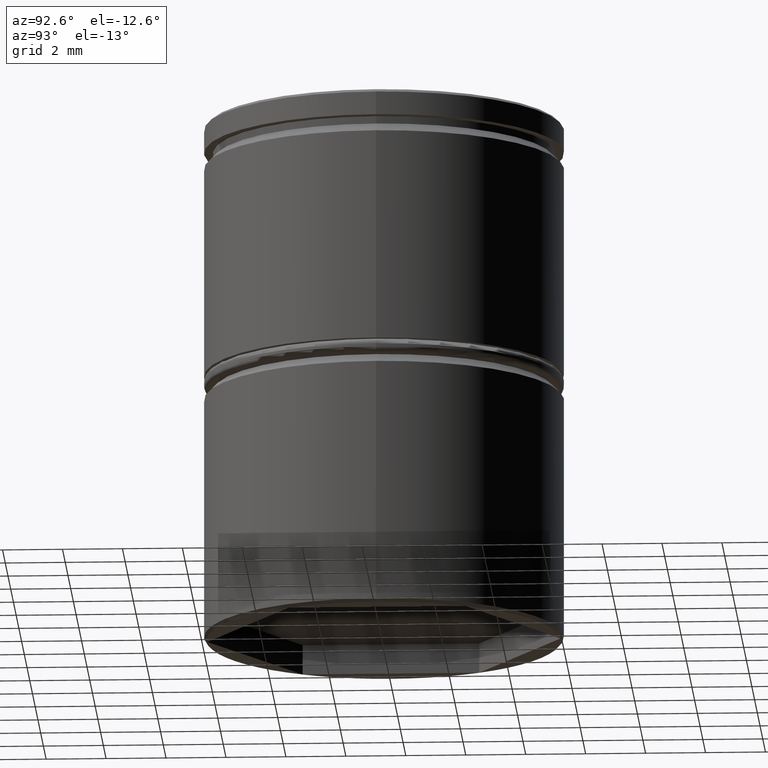
[diagram: clean part render]
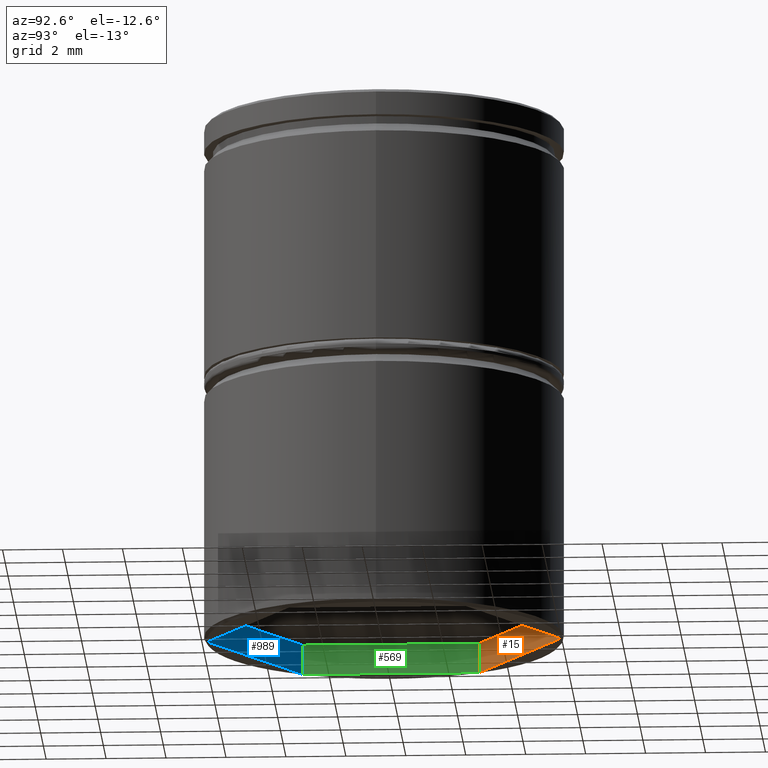
[diagram: same view with three faces highlighted in distinct colors, each labeled with its STEP entity id]
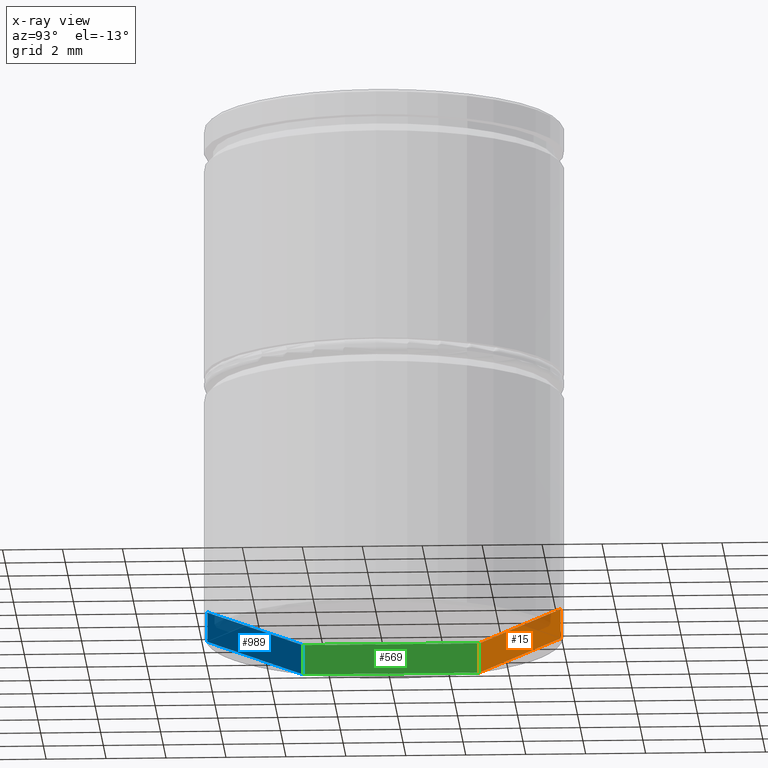
[diagram: x-ray of the same camera — body ghosted, the three highlighted faces saturated]
A machine part, auxiliary view with three faces highlighted in distinct colors.
The next image is the same camera in x-ray (body ghosted, the three faces saturated) — at least one of them is partly hidden behind the body in this view.
Their STEP definitions:

[orange] entity #15 — the highlighted planar face has unit normal (-0.5, 0.866, 0).
#15 = ADVANCED_FACE ( 'NONE', ( #112 ), #996, .F. ) ;
#20 = DIRECTION ( 'NONE',  ( -0.000000000000000000, -0.000000000000000000, -1.000000000000000000 ) ) ;
#25 = CARTESIAN_POINT ( 'NONE',  ( -5.100000000000000533, 2.944486372867091806, -16.50000000000000000 ) ) ;
#84 = CARTESIAN_POINT ( 'NONE',  ( -5.100000000000000533, 2.944486372867091806, -17.50000000000000000 ) ) ;
#91 = AXIS2_PLACEMENT_3D ( 'NONE', #755, #599, #988 ) ;
#112 = FACE_OUTER_BOUND ( 'NONE', #592, .T. ) ;
#137 = CARTESIAN_POINT ( 'NONE',  ( -5.100000000000000533, 2.944486372867091806, -16.50000000000000000 ) ) ;
#168 = ORIENTED_EDGE ( 'NONE', *, *, #905, .F. ) ;
#204 = VERTEX_POINT ( 'NONE', #494 ) ;
#296 = VECTOR ( 'NONE', #20, 1000.000000000000000 ) ;
#324 = DIRECTION ( 'NONE',  ( 0.8660254037844389297, 0.4999999999999995559, 0.000000000000000000 ) ) ;
#333 = CARTESIAN_POINT ( 'NONE',  ( 0.000000000000000000, 5.888972745734180059, -16.50000000000000000 ) ) ;
#364 = CARTESIAN_POINT ( 'NONE',  ( 0.000000000000000000, 5.888972745734180059, -16.50000000000000000 ) ) ;
#433 = VERTEX_POINT ( 'NONE', #505 ) ;
#486 = LINE ( 'NONE', #84, #661 ) ;
#494 = CARTESIAN_POINT ( 'NONE',  ( 0.000000000000000000, 5.888972745734180059, -17.50000000000000000 ) ) ;
#505 = CARTESIAN_POINT ( 'NONE',  ( -5.100000000000000533, 2.944486372867091806, -17.50000000000000000 ) ) ;
#521 = ORIENTED_EDGE ( 'NONE', *, *, #663, .T. ) ;
#551 = LINE ( 'NONE', #1024, #627 ) ;
#592 = EDGE_LOOP ( 'NONE', ( #521, #168, #833, #710 ) ) ;
#597 = LINE ( 'NONE', #364, #820 ) ;
#599 = DIRECTION ( 'NONE',  ( -0.4999999999999995004, 0.8660254037844389297, 0.000000000000000000 ) ) ;
#606 = EDGE_CURVE ( 'NONE', #985, #721, #551, .T. ) ;
#627 = VECTOR ( 'NONE', #946, 1000.000000000000114 ) ;
#661 = VECTOR ( 'NONE', #324, 1000.000000000000114 ) ;
#663 = EDGE_CURVE ( 'NONE', #433, #204, #486, .T. ) ;
#710 = ORIENTED_EDGE ( 'NONE', *, *, #778, .T. ) ;
#721 = VERTEX_POINT ( 'NONE', #333 ) ;
#734 = LINE ( 'NONE', #25, #296 ) ;
#755 = CARTESIAN_POINT ( 'NONE',  ( -5.100000000000000533, 2.944486372867091806, -16.50000000000000000 ) ) ;
#778 = EDGE_CURVE ( 'NONE', #985, #433, #734, .T. ) ;
#820 = VECTOR ( 'NONE', #911, 1000.000000000000000 ) ;
#833 = ORIENTED_EDGE ( 'NONE', *, *, #606, .F. ) ;
#905 = EDGE_CURVE ( 'NONE', #721, #204, #597, .T. ) ;
#911 = DIRECTION ( 'NONE',  ( -0.000000000000000000, -0.000000000000000000, -1.000000000000000000 ) ) ;
#946 = DIRECTION ( 'NONE',  ( 0.8660254037844389297, 0.4999999999999995559, 0.000000000000000000 ) ) ;
#985 = VERTEX_POINT ( 'NONE', #137 ) ;
#988 = DIRECTION ( 'NONE',  ( -0.8660254037844389297, -0.4999999999999995004, 0.000000000000000000 ) ) ;
#996 = PLANE ( 'NONE',  #91 ) ;
#1024 = CARTESIAN_POINT ( 'NONE',  ( -5.100000000000000533, 2.944486372867091806, -16.50000000000000000 ) ) ;

[blue] entity #989 — the highlighted planar face has unit normal (-0.5, -0.866, 0).
#56 = LINE ( 'NONE', #304, #874 ) ;
#63 = CARTESIAN_POINT ( 'NONE',  ( -5.100000000000000533, -2.944486372867089585, -17.50000000000000000 ) ) ;
#118 = LINE ( 'NONE', #435, #840 ) ;
#144 = ORIENTED_EDGE ( 'NONE', *, *, #952, .F. ) ;
#293 = ORIENTED_EDGE ( 'NONE', *, *, #372, .T. ) ;
#304 = CARTESIAN_POINT ( 'NONE',  ( -8.646952822150503169E-16, -5.888972745734181835, -17.50000000000000000 ) ) ;
#355 = ORIENTED_EDGE ( 'NONE', *, *, #639, .T. ) ;
#372 = EDGE_CURVE ( 'NONE', #637, #452, #736, .T. ) ;
#375 = VECTOR ( 'NONE', #768, 1000.000000000000000 ) ;
#435 = CARTESIAN_POINT ( 'NONE',  ( -8.646952822150503169E-16, -5.888972745734181835, -16.50000000000000000 ) ) ;
#452 = VERTEX_POINT ( 'NONE', #900 ) ;
#453 = LINE ( 'NONE', #1016, #375 ) ;
#458 = CARTESIAN_POINT ( 'NONE',  ( -8.646952822150503169E-16, -5.888972745734181835, -16.50000000000000000 ) ) ;
#525 = VERTEX_POINT ( 'NONE', #702 ) ;
#530 = VERTEX_POINT ( 'NONE', #63 ) ;
#539 = PLANE ( 'NONE',  #972 ) ;
#584 = VECTOR ( 'NONE', #882, 1000.000000000000000 ) ;
#637 = VERTEX_POINT ( 'NONE', #771 ) ;
#639 = EDGE_CURVE ( 'NONE', #452, #530, #56, .T. ) ;
#644 = EDGE_LOOP ( 'NONE', ( #355, #690, #144, #293 ) ) ;
#690 = ORIENTED_EDGE ( 'NONE', *, *, #1028, .F. ) ;
#691 = DIRECTION ( 'NONE',  ( -0.5000000000000003331, -0.8660254037844385966, 0.000000000000000000 ) ) ;
#699 = FACE_OUTER_BOUND ( 'NONE', #644, .T. ) ;
#702 = CARTESIAN_POINT ( 'NONE',  ( -5.100000000000000533, -2.944486372867089585, -16.50000000000000000 ) ) ;
#736 = LINE ( 'NONE', #962, #584 ) ;
#754 = DIRECTION ( 'NONE',  ( -0.8660254037844384856, 0.5000000000000002220, 0.000000000000000000 ) ) ;
#768 = DIRECTION ( 'NONE',  ( -0.000000000000000000, -0.000000000000000000, -1.000000000000000000 ) ) ;
#771 = CARTESIAN_POINT ( 'NONE',  ( -8.646952822150503169E-16, -5.888972745734181835, -16.50000000000000000 ) ) ;
#840 = VECTOR ( 'NONE', #754, 1000.000000000000114 ) ;
#848 = DIRECTION ( 'NONE',  ( 0.8660254037844384856, -0.5000000000000002220, 0.000000000000000000 ) ) ;
#874 = VECTOR ( 'NONE', #1013, 1000.000000000000114 ) ;
#882 = DIRECTION ( 'NONE',  ( -0.000000000000000000, -0.000000000000000000, -1.000000000000000000 ) ) ;
#900 = CARTESIAN_POINT ( 'NONE',  ( -8.646952822150503169E-16, -5.888972745734181835, -17.50000000000000000 ) ) ;
#952 = EDGE_CURVE ( 'NONE', #637, #525, #118, .T. ) ;
#962 = CARTESIAN_POINT ( 'NONE',  ( -8.646952822150503169E-16, -5.888972745734181835, -16.50000000000000000 ) ) ;
#972 = AXIS2_PLACEMENT_3D ( 'NONE', #458, #691, #848 ) ;
#989 = ADVANCED_FACE ( 'NONE', ( #699 ), #539, .F. ) ;
#1013 = DIRECTION ( 'NONE',  ( -0.8660254037844384856, 0.5000000000000002220, 0.000000000000000000 ) ) ;
#1016 = CARTESIAN_POINT ( 'NONE',  ( -5.100000000000000533, -2.944486372867089585, -16.50000000000000000 ) ) ;
#1028 = EDGE_CURVE ( 'NONE', #525, #530, #453, .T. ) ;

[green] entity #569 — the highlighted planar face has unit normal (-1, 0, 0).
#20 = DIRECTION ( 'NONE',  ( -0.000000000000000000, -0.000000000000000000, -1.000000000000000000 ) ) ;
#23 = ORIENTED_EDGE ( 'NONE', *, *, #778, .F. ) ;
#25 = CARTESIAN_POINT ( 'NONE',  ( -5.100000000000000533, 2.944486372867091806, -16.50000000000000000 ) ) ;
#63 = CARTESIAN_POINT ( 'NONE',  ( -5.100000000000000533, -2.944486372867089585, -17.50000000000000000 ) ) ;
#65 = CARTESIAN_POINT ( 'NONE',  ( -5.100000000000000533, -2.944486372867089585, -16.50000000000000000 ) ) ;
#110 = DIRECTION ( 'NONE',  ( 0.000000000000000000, 1.000000000000000000, 0.000000000000000000 ) ) ;
#137 = CARTESIAN_POINT ( 'NONE',  ( -5.100000000000000533, 2.944486372867091806, -16.50000000000000000 ) ) ;
#138 = DIRECTION ( 'NONE',  ( 0.000000000000000000, 0.000000000000000000, 1.000000000000000000 ) ) ;
#163 = AXIS2_PLACEMENT_3D ( 'NONE', #65, #392, #138 ) ;
#172 = LINE ( 'NONE', #800, #477 ) ;
#245 = EDGE_LOOP ( 'NONE', ( #358, #23, #556, #462 ) ) ;
#292 = CARTESIAN_POINT ( 'NONE',  ( -5.100000000000000533, -2.944486372867089585, -17.50000000000000000 ) ) ;
#296 = VECTOR ( 'NONE', #20, 1000.000000000000000 ) ;
#358 = ORIENTED_EDGE ( 'NONE', *, *, #849, .T. ) ;
#373 = EDGE_CURVE ( 'NONE', #525, #985, #172, .T. ) ;
#375 = VECTOR ( 'NONE', #768, 1000.000000000000000 ) ;
#392 = DIRECTION ( 'NONE',  ( -1.000000000000000000, 0.000000000000000000, 0.000000000000000000 ) ) ;
#427 = LINE ( 'NONE', #292, #889 ) ;
#433 = VERTEX_POINT ( 'NONE', #505 ) ;
#453 = LINE ( 'NONE', #1016, #375 ) ;
#462 = ORIENTED_EDGE ( 'NONE', *, *, #1028, .T. ) ;
#477 = VECTOR ( 'NONE', #790, 1000.000000000000000 ) ;
#505 = CARTESIAN_POINT ( 'NONE',  ( -5.100000000000000533, 2.944486372867091806, -17.50000000000000000 ) ) ;
#525 = VERTEX_POINT ( 'NONE', #702 ) ;
#530 = VERTEX_POINT ( 'NONE', #63 ) ;
#556 = ORIENTED_EDGE ( 'NONE', *, *, #373, .F. ) ;
#559 = FACE_OUTER_BOUND ( 'NONE', #245, .T. ) ;
#569 = ADVANCED_FACE ( 'NONE', ( #559 ), #857, .F. ) ;
#702 = CARTESIAN_POINT ( 'NONE',  ( -5.100000000000000533, -2.944486372867089585, -16.50000000000000000 ) ) ;
#734 = LINE ( 'NONE', #25, #296 ) ;
#768 = DIRECTION ( 'NONE',  ( -0.000000000000000000, -0.000000000000000000, -1.000000000000000000 ) ) ;
#778 = EDGE_CURVE ( 'NONE', #985, #433, #734, .T. ) ;
#790 = DIRECTION ( 'NONE',  ( 0.000000000000000000, 1.000000000000000000, 0.000000000000000000 ) ) ;
#800 = CARTESIAN_POINT ( 'NONE',  ( -5.100000000000000533, -2.944486372867089585, -16.50000000000000000 ) ) ;
#849 = EDGE_CURVE ( 'NONE', #530, #433, #427, .T. ) ;
#857 = PLANE ( 'NONE',  #163 ) ;
#889 = VECTOR ( 'NONE', #110, 1000.000000000000000 ) ;
#985 = VERTEX_POINT ( 'NONE', #137 ) ;
#1016 = CARTESIAN_POINT ( 'NONE',  ( -5.100000000000000533, -2.944486372867089585, -16.50000000000000000 ) ) ;
#1028 = EDGE_CURVE ( 'NONE', #525, #530, #453, .T. ) ;